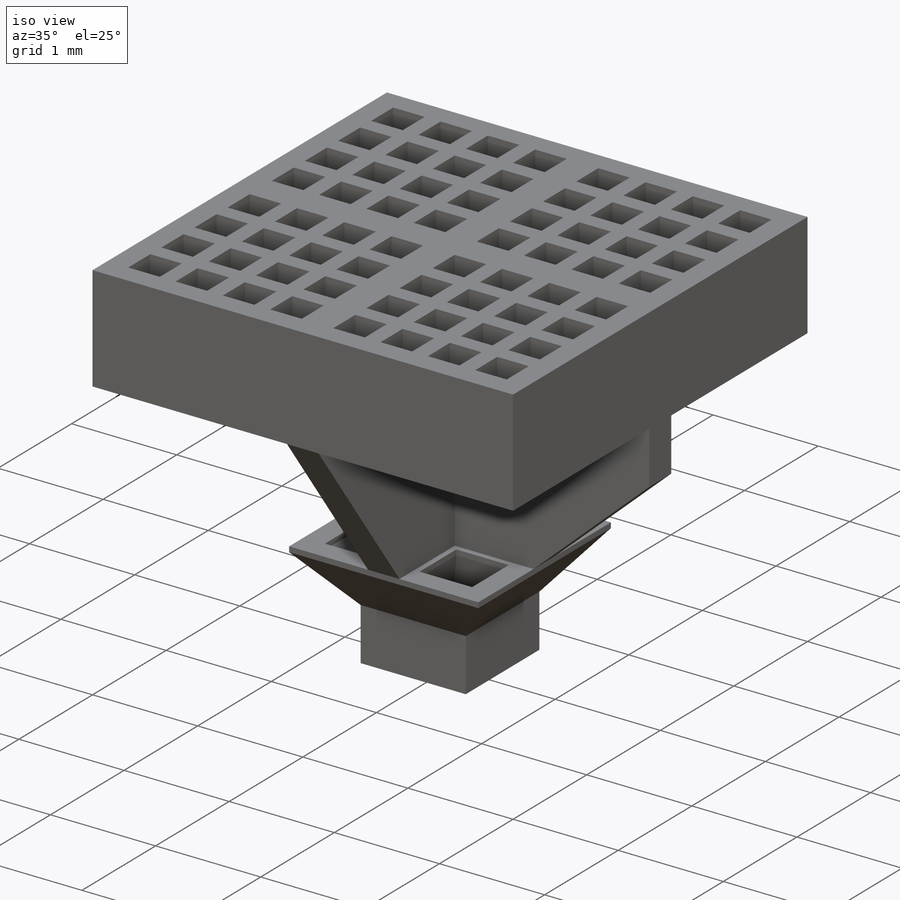
[diagram: iso view]
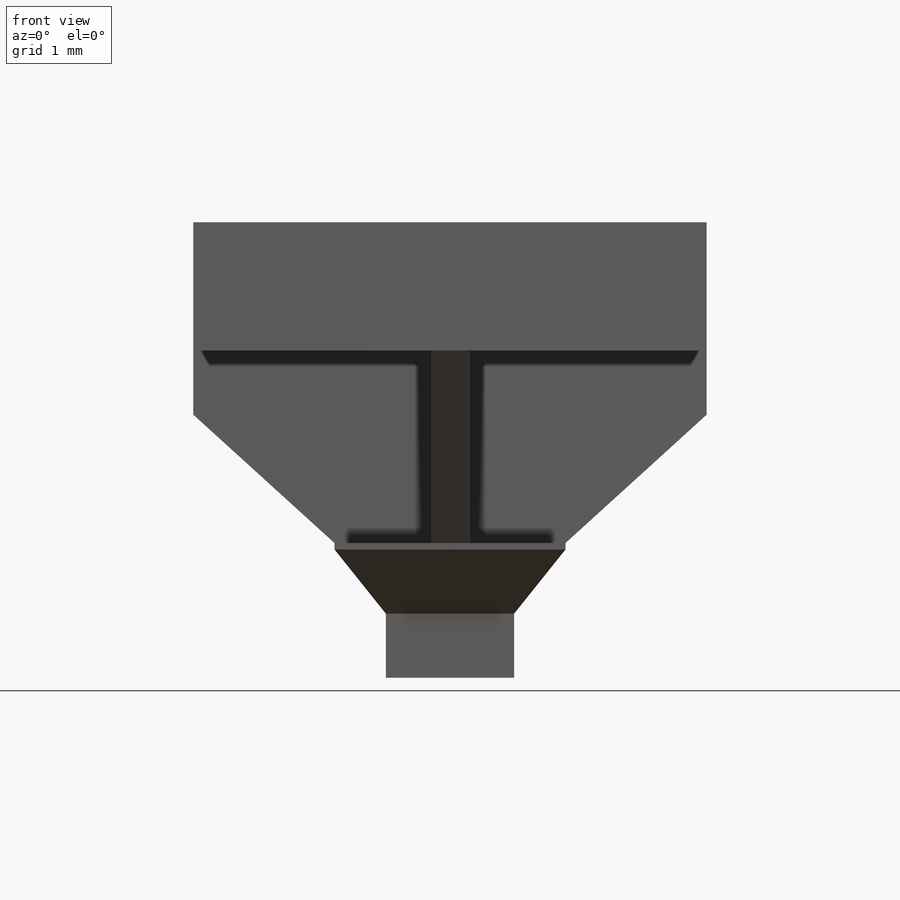
[diagram: front view]
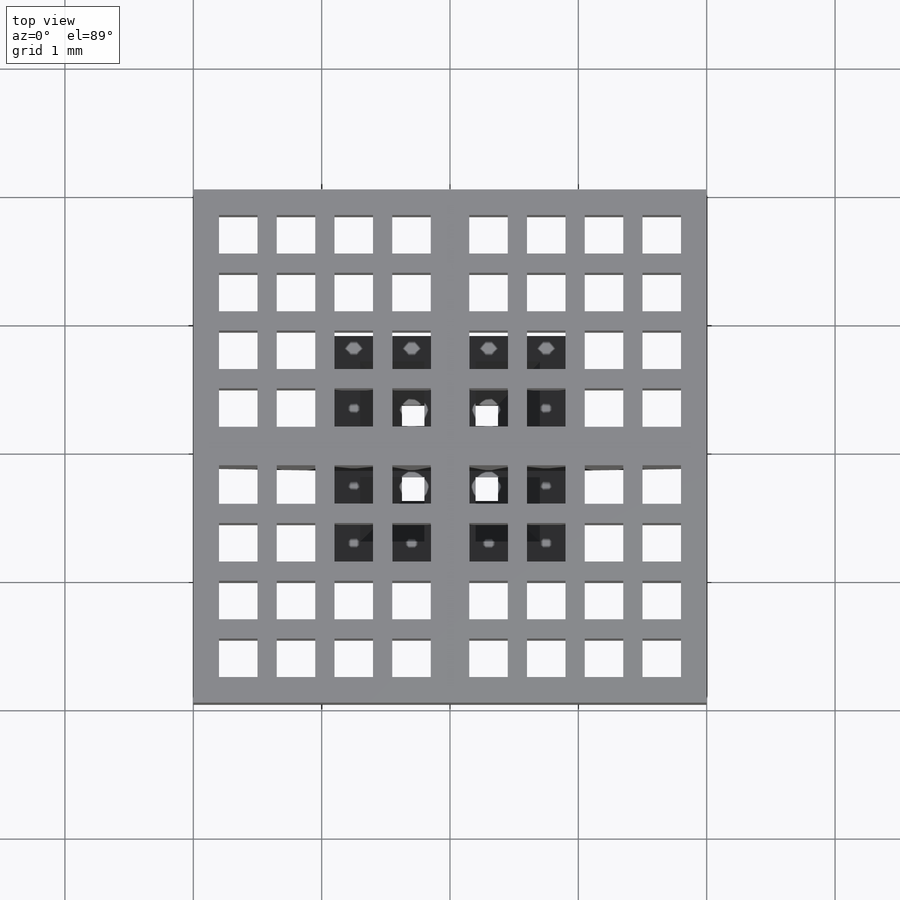
[diagram: top view]
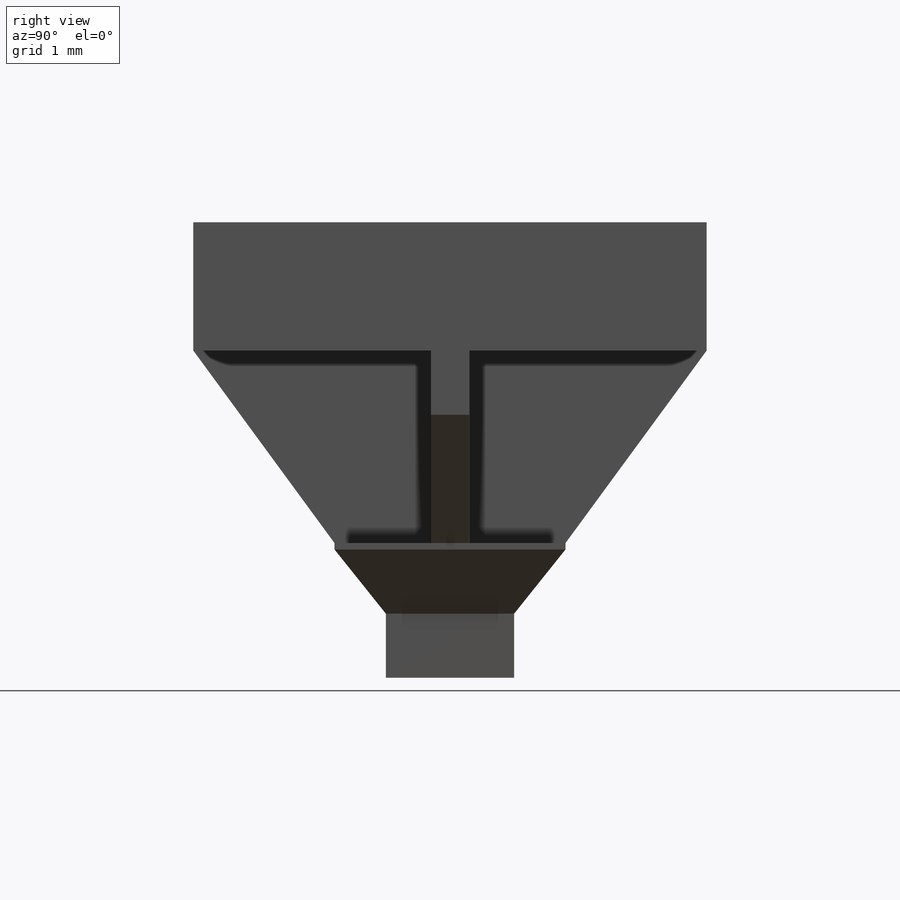
[diagram: right view]
SOLIDWORKS PART (.sldprt)
format: sldprt  version: not decoded by parser v0  size: 1,049,088 bytes
history: native  units: mm
features: sketch x29, cut_extrude x12, extrude x4, plane x3, material x1 (+12 scaffold rows collapsed)
feature tree (61):
  scaffold x12  (default folders/planes/origin — collapsed)
  material  "Material <not specified>"
  sketch  "top panel"  dims[D1=4.0mm D2=4.0mm]
  extrude  "Boss-Extrude1"  Depth=1mm
  sketch  "wells_1"  dims[D1=0.3mm D2=0.3mm D3=0.2mm D4=0.2mm D7=0.45mm D8=0.15mm D5=4.0 D6=4.0]
  sketch  "wells_2"  dims[D1=0.3mm D2=0.3mm D3=0.2mm D4=0.2mm D5=4.0 D6=4.0]
  sketch  "wells_3"  dims[D1=0.3mm D2=0.3mm D3=0.2mm D4=0.2mm D5=4.0 D6=4.0]
  sketch  "wells_4"  dims[D1=0.3mm D2=0.3mm D3=0.2mm D4=0.2mm D5=4.0 D6=4.0]
  cut_extrude  "wells_1_cut"  Depth=1mm
  cut_extrude  "wells_2_cut"  Depth=1mm
  cut_extrude  "wells_3_cut"  Depth=1mm
  cut_extrude  "wells_4_cut"  Depth=1mm
  sketch  "top_support_1"  dims[D1=0.3mm D2=0.3mm]
  extrude  "top_support_extr_1"  Depth=0.5mm
  plane  "Plane1"  Offset=2.5mm
  sketch  "mid_support_1"
  sketch  "top_support_2"  dims[D1=0.3mm]
  sketch  "mid_support_2"
  sketch  "Sketch11"  dims[D1=1.8mm]
  extrude  "mid_plane"  Depth=0.05mm
  sketch  "mid_well_1"  dims[D1=0.5mm D2=0.5mm D3=0.2mm D4=0.2mm]
  sketch  "mid_well_2"  dims[D1=0.5mm]
  sketch  "mid_well_3"  dims[D1=0.5mm]
  sketch  "mid_well_4"  dims[D1=0.5mm D2=0.2mm D3=0.2mm]
  cut_extrude  "mid_well_1_etr"  Depth=0.3mm
  cut_extrude  "mid_well_2_etr"  Depth=0.3mm
  cut_extrude  "mid_well_3_etr"  Depth=0.3mm
  cut_extrude  "mid_well_4_etr"  Depth=0.3mm
  plane  "Plane2"  Offset=0.55mm
  sketch  "Sketch16"  dims[c1.D1=1.4mm c2.D1=90.0deg c3.D1=1.0mm]
  sketch  "Sketch17"
  sketch  "Sketch19"  dims[D1=0.075mm D2=0.075mm]
  sketch  "mid_well_1<2>"
  sketch  "Sketch20"  dims[D1=0.075mm D2=0.075mm]
  sketch  "Sketch21"  dims[D1=0.075mm D2=0.075mm]
  sketch  "Sketch22"  dims[D1=0.075mm D2=0.075mm D3=0.3mm bottom_well_2=0.0deg]
  sketch  "mid_well_4<2>"  dims[bottom_well_3=0.0deg]
  sketch  "mid_well_2<2>"  dims[bottom_well_4=0.0deg]
  sketch  "mid_well_3<2>"
  plane  "Plane3"  Offset=0.25mm
  extrude  "Boss-Extrude5"  [1 undecoded]
  sketch  "Sketch16<4>"  dims[D1=0.5mm]
  cut_extrude  "Cut-Extrude9"  [1 undecoded]
  sketch  "Sketch19<2>"  dims[D1=0.5mm]
  cut_extrude  "Cut-Extrude10"  [1 undecoded]
  sketch  "Sketch22<2>"  dims[D1=0.5mm]
  cut_extrude  "Cut-Extrude11"  [1 undecoded]
  sketch  "Sketch20<2>"  dims[D1=0.5mm]
  cut_extrude  "Cut-Extrude12"  [1 undecoded]
  sketch  "Sketch21<2>"  dims[D1=0.5mm]
decode coverage: 35 of 45 modeling features carry decoded parameters
note: 5 parameter values undecoded
summary: no parameter record found for 5 features
note: suppression state not decoded; provenance and decode notes live in map.json
